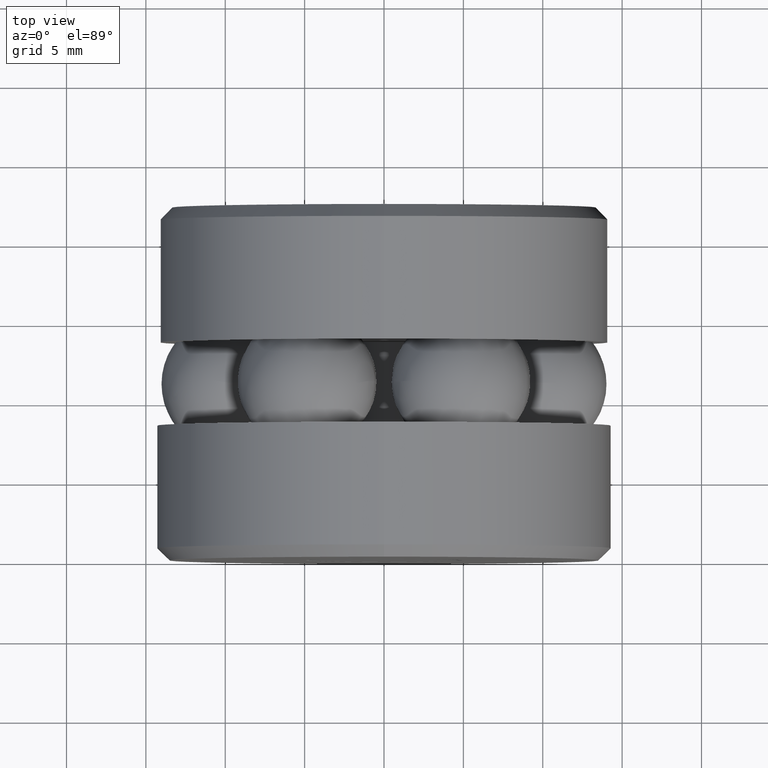
[diagram: clean part render]
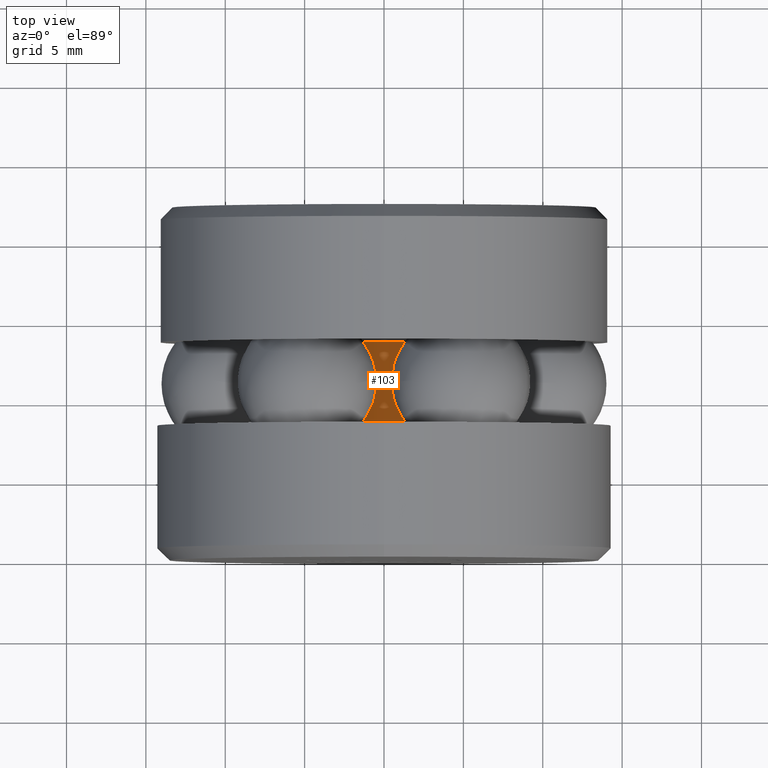
[diagram: same view with one face highlighted and labeled with its STEP entity id]
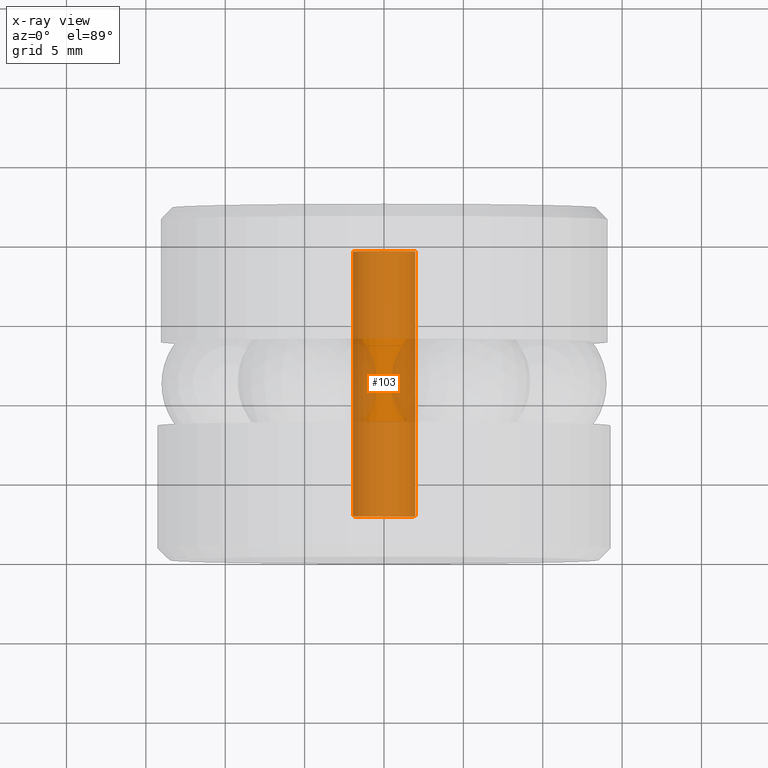
[diagram: x-ray of the same camera — body ghosted, the highlighted face saturated]
A machine part, top view. The second image highlights one B-rep face of the part: STEP entity #103.
The next image is the same camera in x-ray: the body ghosted, the highlighted face saturated — about 88% of this face is hidden behind the body in this view.
In plain terms, the highlighted cylindrical surface (bore or boss wall) has radius 1.9812 mm, axis along (-0, 1, -0).
Its self-contained STEP definition (entity closure, byte-faithful):
#11 = AXIS2_PLACEMENT_3D ( 'NONE', #273, #138, #114 ) ;
#22 = FACE_OUTER_BOUND ( 'NONE', #528, .T. ) ;
#33 = FACE_OUTER_BOUND ( 'NONE', #93, .T. ) ;
#40 = ORIENTED_EDGE ( 'NONE', *, *, #541, .T. ) ;
#52 = EDGE_CURVE ( 'NONE', #75, #75, #329, .T. ) ;
#75 = VERTEX_POINT ( 'NONE', #328 ) ;
#93 = EDGE_LOOP ( 'NONE', ( #40 ) ) ;
#103 = ADVANCED_FACE ( 'NONE', ( #33, #22 ), #370, .T. ) ;
#114 = DIRECTION ( 'NONE',  ( 0.0000000000000000000, 0.0000000000000000000, 1.000000000000000000 ) ) ;
#138 = DIRECTION ( 'NONE',  ( -0.0000000000000000000, 1.000000000000000000, -0.0000000000000000000 ) ) ;
#179 = CARTESIAN_POINT ( 'NONE',  ( 0.0000000000000000000, 0.1093750000000000300, 0.07800000000000001400 ) ) ;
#230 = CIRCLE ( 'NONE', #539, 0.07800000000000001400 ) ;
#273 = CARTESIAN_POINT ( 'NONE',  ( 0.0000000000000000000, 0.0000000000000000000, 0.0000000000000000000 ) ) ;
#308 = AXIS2_PLACEMENT_3D ( 'NONE', #334, #327, #324 ) ;
#324 = DIRECTION ( 'NONE',  ( 0.0000000000000000000, 0.0000000000000000000, 1.000000000000000000 ) ) ;
#327 = DIRECTION ( 'NONE',  ( -0.0000000000000000000, 1.000000000000000000, -0.0000000000000000000 ) ) ;
#328 = CARTESIAN_POINT ( 'NONE',  ( 0.0000000000000000000, 0.7656250000000000000, 0.07800000000000012500 ) ) ;
#329 = CIRCLE ( 'NONE', #308, 0.07800000000000012500 ) ;
#334 = CARTESIAN_POINT ( 'NONE',  ( 0.0000000000000000000, 0.7656250000000000000, 0.0000000000000000000 ) ) ;
#355 = CARTESIAN_POINT ( 'NONE',  ( 0.0000000000000000000, 0.1093750000000000300, 0.0000000000000000000 ) ) ;
#370 = CYLINDRICAL_SURFACE ( 'NONE', #11, 0.07800000000000006900 ) ;
#400 = DIRECTION ( 'NONE',  ( 0.0000000000000000000, 0.0000000000000000000, 1.000000000000000000 ) ) ;
#458 = ORIENTED_EDGE ( 'NONE', *, *, #52, .F. ) ;
#478 = VERTEX_POINT ( 'NONE', #179 ) ;
#528 = EDGE_LOOP ( 'NONE', ( #458 ) ) ;
#539 = AXIS2_PLACEMENT_3D ( 'NONE', #355, #545, #400 ) ;
#541 = EDGE_CURVE ( 'NONE', #478, #478, #230, .T. ) ;
#545 = DIRECTION ( 'NONE',  ( -0.0000000000000000000, 1.000000000000000000, -0.0000000000000000000 ) ) ;